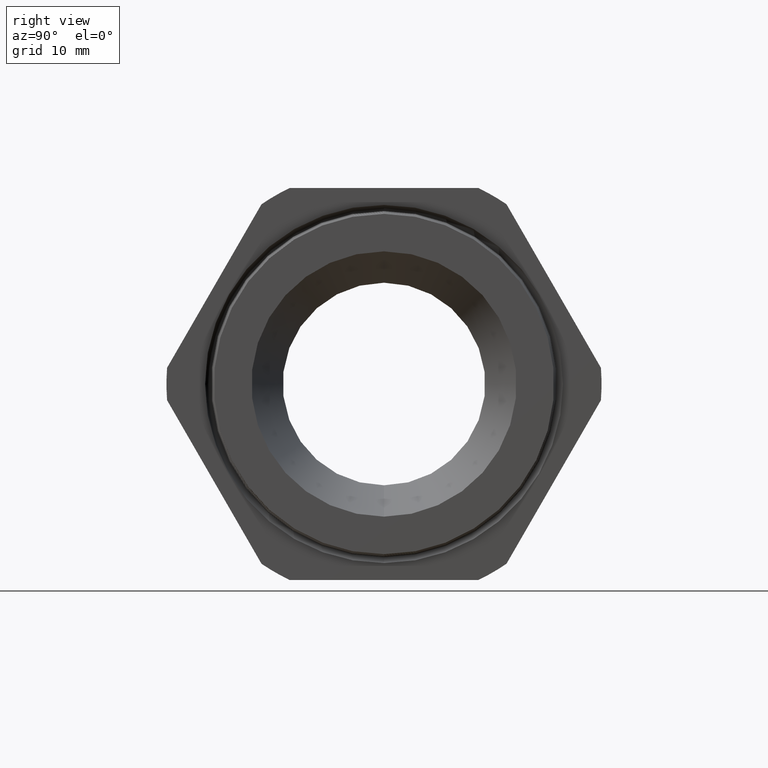
[diagram: clean part render]
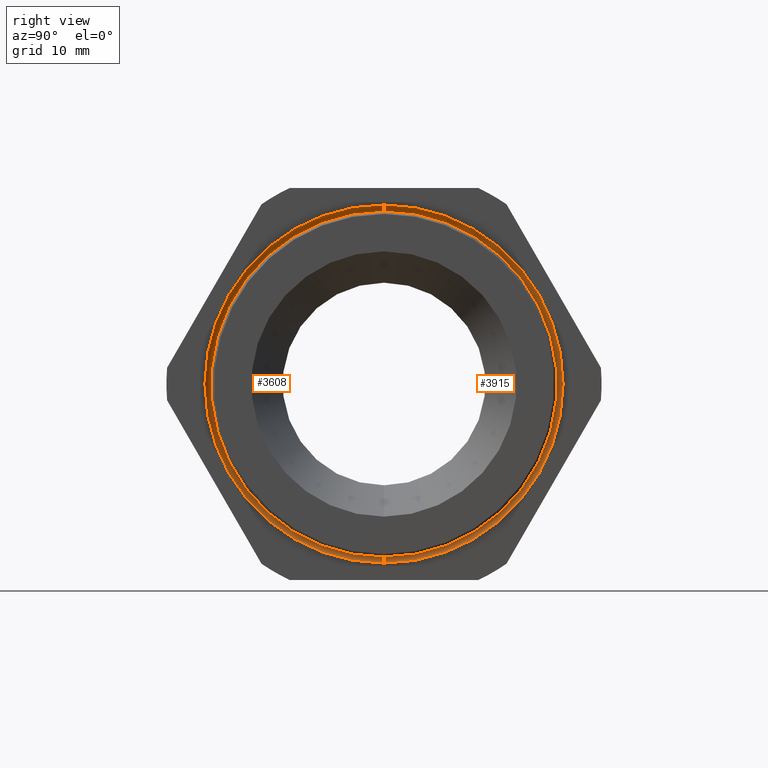
[diagram: same view with one multi-face feature highlighted, each face labeled with its STEP entity id]
A machine part, right view. The highlighted faces form ONE feature: a constant-radius fillet chain: 2 tangent blend faces with common blend radius 1.016 mm. The faces share edges in the B-rep.
Their STEP definitions:
[1] entity #3608 (Torus):
#1341 = CARTESIAN_POINT ( 'NONE',  ( -0.3089999999999999400, 1.222219828580836400E-016, 0.9980182281387527400 ) ) ;
#1352 = CARTESIAN_POINT ( 'NONE',  ( -0.3089999999999999400, 0.0000000000000000000, -0.9980182281387527400 ) ) ;
#1556 = CARTESIAN_POINT ( 'NONE',  ( -0.3100000000000000000, 1.320176262034999400E-016, 1.078005726185017100 ) ) ;
#1557 = DIRECTION ( 'NONE',  ( 0.0000000000000000000, 1.224646799147351000E-016, 1.000000000000000000 ) ) ;
#1558 = DIRECTION ( 'NONE',  ( 0.0000000000000000000, 1.000000000000000000, -1.224646799147353200E-016 ) ) ;
#1559 = CARTESIAN_POINT ( 'NONE',  ( -0.3089999999999999400, 1.271205700546730400E-016, 1.038018228138752700 ) ) ;
#1560 = AXIS2_PLACEMENT_3D ( 'NONE', #1559, #1558, #1557 ) ;
#1561 = CIRCLE ( 'NONE', #1560, 0.03999999999999998000 ) ;
#1562 = DIRECTION ( 'NONE',  ( 0.0000000000000000000, 0.0000000000000000000, -1.000000000000000000 ) ) ;
#1563 = DIRECTION ( 'NONE',  ( 1.000000000000000000, 0.0000000000000000000, 0.0000000000000000000 ) ) ;
#1564 = AXIS2_PLACEMENT_3D ( 'NONE', #1566, #1563, #1562 ) ;
#1565 = TOROIDAL_SURFACE ( 'NONE', #1564, 1.038018228138752700, 0.03999999999999996600 ) ;
#1566 = CARTESIAN_POINT ( 'NONE',  ( -0.3089999999999999400, 0.0000000000000000000, 0.0000000000000000000 ) ) ;
#1567 = FACE_OUTER_BOUND ( 'NONE', #3609, .T. ) ;
#1617 = DIRECTION ( 'NONE',  ( 0.0000000000000000000, 0.0000000000000000000, -1.000000000000000000 ) ) ;
#1618 = DIRECTION ( 'NONE',  ( 0.0000000000000000000, -1.000000000000000000, 0.0000000000000000000 ) ) ;
#1619 = CARTESIAN_POINT ( 'NONE',  ( -0.3089999999999999400, 0.0000000000000000000, -1.038018228138752700 ) ) ;
#1620 = AXIS2_PLACEMENT_3D ( 'NONE', #1619, #1618, #1617 ) ;
#1621 = CIRCLE ( 'NONE', #1620, 0.03999999999999998000 ) ;
#1623 = CARTESIAN_POINT ( 'NONE',  ( -0.3100000000000000000, 0.0000000000000000000, -1.078005726185017100 ) ) ;
#1624 = DIRECTION ( 'NONE',  ( 0.0000000000000000000, 0.0000000000000000000, -1.000000000000000000 ) ) ;
#1625 = DIRECTION ( 'NONE',  ( -1.000000000000000000, 0.0000000000000000000, 0.0000000000000000000 ) ) ;
#1626 = CARTESIAN_POINT ( 'NONE',  ( -0.3100000000000000000, 0.0000000000000000000, 0.0000000000000000000 ) ) ;
#1627 = AXIS2_PLACEMENT_3D ( 'NONE', #1626, #1625, #1624 ) ;
#1628 = CIRCLE ( 'NONE', #1627, 1.078005726185017100 ) ;
#1634 = DIRECTION ( 'NONE',  ( 0.0000000000000000000, 0.0000000000000000000, -1.000000000000000000 ) ) ;
#1635 = DIRECTION ( 'NONE',  ( 1.000000000000000000, 0.0000000000000000000, 0.0000000000000000000 ) ) ;
#1636 = CARTESIAN_POINT ( 'NONE',  ( -0.3089999999999999400, 0.0000000000000000000, 0.0000000000000000000 ) ) ;
#1637 = AXIS2_PLACEMENT_3D ( 'NONE', #1636, #1635, #1634 ) ;
#1638 = CIRCLE ( 'NONE', #1637, 0.9980182281387527400 ) ;
#3481 = VERTEX_POINT ( 'NONE', #1352 ) ;
#3487 = VERTEX_POINT ( 'NONE', #1341 ) ;
#3608 = ADVANCED_FACE ( 'NONE', ( #1567 ), #1565, .F. ) ;
#3609 = EDGE_LOOP ( 'NONE', ( #3610, #3611, #3637, #3640 ) ) ;
#3610 = ORIENTED_EDGE ( 'NONE', *, *, #3633, .F. ) ;
#3611 = ORIENTED_EDGE ( 'NONE', *, *, #3612, .T. ) ;
#3612 = EDGE_CURVE ( 'NONE', #3487, #3613, #1561, .T. ) ;
#3613 = VERTEX_POINT ( 'NONE', #1556 ) ;
#3633 = EDGE_CURVE ( 'NONE', #3487, #3481, #1638, .T. ) ;
#3637 = ORIENTED_EDGE ( 'NONE', *, *, #3638, .F. ) ;
#3638 = EDGE_CURVE ( 'NONE', #3639, #3613, #1628, .T. ) ;
#3639 = VERTEX_POINT ( 'NONE', #1623 ) ;
#3640 = ORIENTED_EDGE ( 'NONE', *, *, #3641, .F. ) ;
#3641 = EDGE_CURVE ( 'NONE', #3481, #3639, #1621, .T. ) ;
[2] entity #3915 (Torus):
#1341 = CARTESIAN_POINT ( 'NONE',  ( -0.3089999999999999400, 1.222219828580836400E-016, 0.9980182281387527400 ) ) ;
#1342 = DIRECTION ( 'NONE',  ( 0.0000000000000000000, 0.0000000000000000000, -1.000000000000000000 ) ) ;
#1343 = DIRECTION ( 'NONE',  ( 1.000000000000000000, 0.0000000000000000000, 0.0000000000000000000 ) ) ;
#1344 = CARTESIAN_POINT ( 'NONE',  ( -0.3089999999999999400, 0.0000000000000000000, 0.0000000000000000000 ) ) ;
#1345 = AXIS2_PLACEMENT_3D ( 'NONE', #1344, #1343, #1342 ) ;
#1346 = CIRCLE ( 'NONE', #1345, 0.9980182281387527400 ) ;
#1352 = CARTESIAN_POINT ( 'NONE',  ( -0.3089999999999999400, 0.0000000000000000000, -0.9980182281387527400 ) ) ;
#1556 = CARTESIAN_POINT ( 'NONE',  ( -0.3100000000000000000, 1.320176262034999400E-016, 1.078005726185017100 ) ) ;
#1557 = DIRECTION ( 'NONE',  ( 0.0000000000000000000, 1.224646799147351000E-016, 1.000000000000000000 ) ) ;
#1558 = DIRECTION ( 'NONE',  ( 0.0000000000000000000, 1.000000000000000000, -1.224646799147353200E-016 ) ) ;
#1559 = CARTESIAN_POINT ( 'NONE',  ( -0.3089999999999999400, 1.271205700546730400E-016, 1.038018228138752700 ) ) ;
#1560 = AXIS2_PLACEMENT_3D ( 'NONE', #1559, #1558, #1557 ) ;
#1561 = CIRCLE ( 'NONE', #1560, 0.03999999999999998000 ) ;
#1617 = DIRECTION ( 'NONE',  ( 0.0000000000000000000, 0.0000000000000000000, -1.000000000000000000 ) ) ;
#1618 = DIRECTION ( 'NONE',  ( 0.0000000000000000000, -1.000000000000000000, 0.0000000000000000000 ) ) ;
#1619 = CARTESIAN_POINT ( 'NONE',  ( -0.3089999999999999400, 0.0000000000000000000, -1.038018228138752700 ) ) ;
#1620 = AXIS2_PLACEMENT_3D ( 'NONE', #1619, #1618, #1617 ) ;
#1621 = CIRCLE ( 'NONE', #1620, 0.03999999999999998000 ) ;
#1623 = CARTESIAN_POINT ( 'NONE',  ( -0.3100000000000000000, 0.0000000000000000000, -1.078005726185017100 ) ) ;
#2042 = DIRECTION ( 'NONE',  ( 0.0000000000000000000, 0.0000000000000000000, -1.000000000000000000 ) ) ;
#2043 = DIRECTION ( 'NONE',  ( 1.000000000000000000, 0.0000000000000000000, 0.0000000000000000000 ) ) ;
#2044 = CARTESIAN_POINT ( 'NONE',  ( -0.3089999999999999400, 0.0000000000000000000, 0.0000000000000000000 ) ) ;
#2045 = AXIS2_PLACEMENT_3D ( 'NONE', #2044, #2043, #2042 ) ;
#2046 = TOROIDAL_SURFACE ( 'NONE', #2045, 1.038018228138752700, 0.03999999999999996600 ) ;
#2047 = FACE_OUTER_BOUND ( 'NONE', #3916, .T. ) ;
#2567 = DIRECTION ( 'NONE',  ( 0.0000000000000000000, 0.0000000000000000000, -1.000000000000000000 ) ) ;
#2568 = DIRECTION ( 'NONE',  ( -1.000000000000000000, 0.0000000000000000000, 0.0000000000000000000 ) ) ;
#2569 = CARTESIAN_POINT ( 'NONE',  ( -0.3100000000000000000, 0.0000000000000000000, 0.0000000000000000000 ) ) ;
#2570 = AXIS2_PLACEMENT_3D ( 'NONE', #2569, #2568, #2567 ) ;
#2571 = CIRCLE ( 'NONE', #2570, 1.078005726185017100 ) ;
#3481 = VERTEX_POINT ( 'NONE', #1352 ) ;
#3486 = EDGE_CURVE ( 'NONE', #3481, #3487, #1346, .T. ) ;
#3487 = VERTEX_POINT ( 'NONE', #1341 ) ;
#3612 = EDGE_CURVE ( 'NONE', #3487, #3613, #1561, .T. ) ;
#3613 = VERTEX_POINT ( 'NONE', #1556 ) ;
#3639 = VERTEX_POINT ( 'NONE', #1623 ) ;
#3641 = EDGE_CURVE ( 'NONE', #3481, #3639, #1621, .T. ) ;
#3915 = ADVANCED_FACE ( 'NONE', ( #2047 ), #2046, .F. ) ;
#3916 = EDGE_LOOP ( 'NONE', ( #3917, #3918, #3919, #3920 ) ) ;
#3917 = ORIENTED_EDGE ( 'NONE', *, *, #3486, .F. ) ;
#3918 = ORIENTED_EDGE ( 'NONE', *, *, #3641, .T. ) ;
#3919 = ORIENTED_EDGE ( 'NONE', *, *, #4440, .F. ) ;
#3920 = ORIENTED_EDGE ( 'NONE', *, *, #3612, .F. ) ;
#4440 = EDGE_CURVE ( 'NONE', #3613, #3639, #2571, .T. ) ;